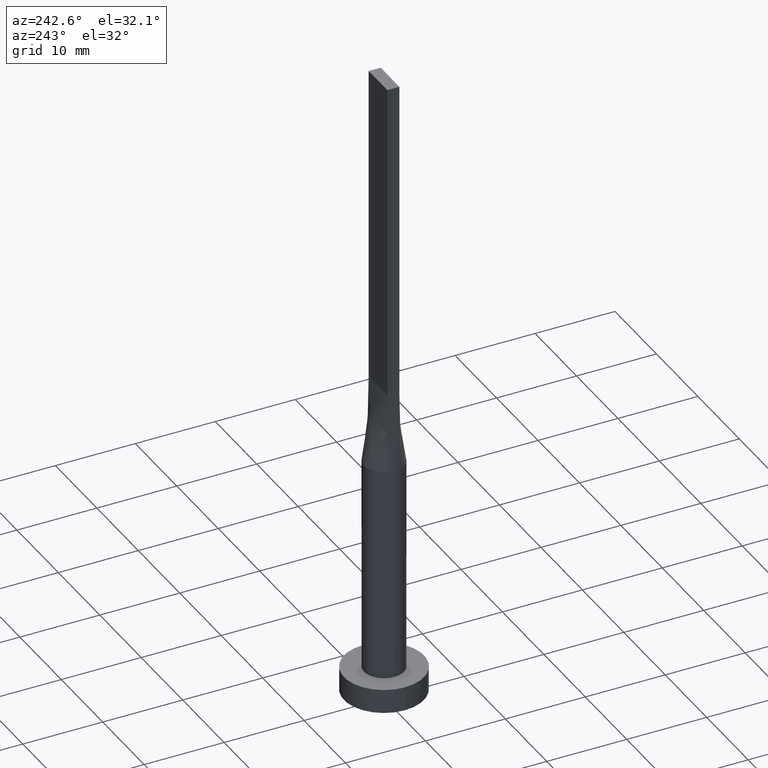
[diagram: clean part render]
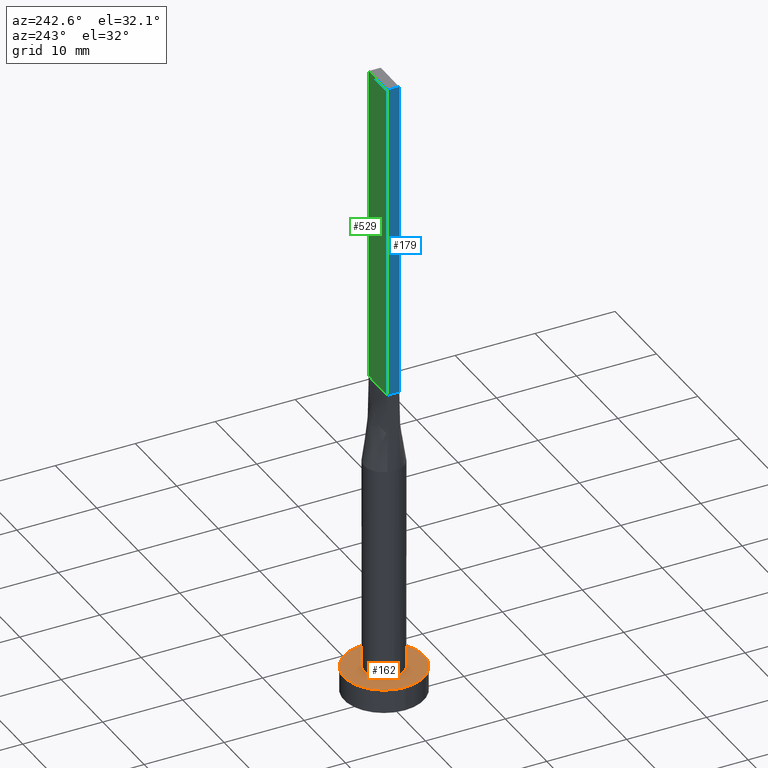
[diagram: same view with three faces highlighted in distinct colors, each labeled with its STEP entity id]
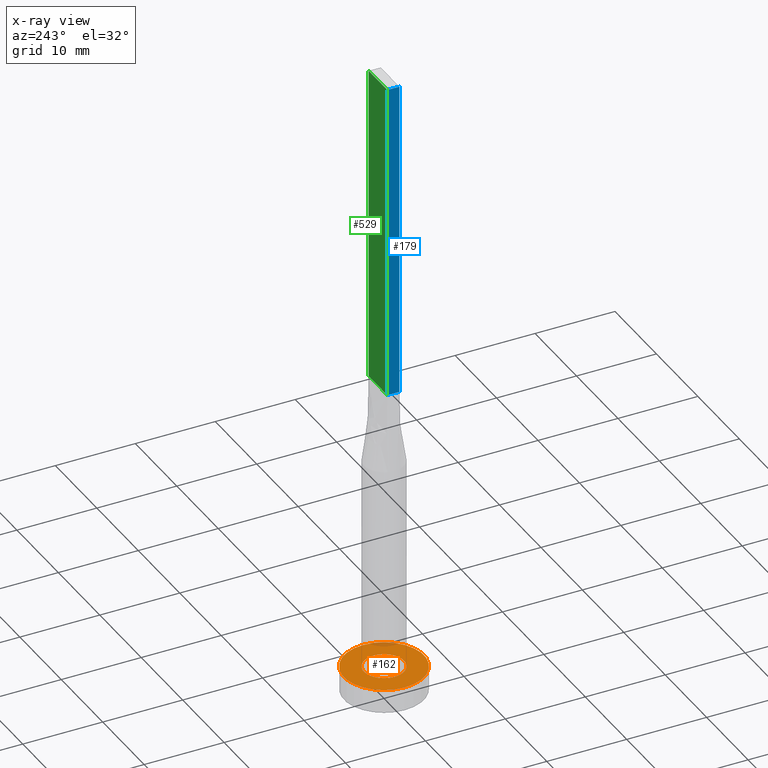
[diagram: x-ray of the same camera — body ghosted, the three highlighted faces saturated]
A machine part, auxiliary view with three faces highlighted in distinct colors.
The next image is the same camera in x-ray (body ghosted, the three faces saturated) — at least one of them is partly hidden behind the body in this view.
Their STEP definitions:

[orange] entity #162 — the highlighted planar face has unit normal (0, 0, 1).
#5 = CARTESIAN_POINT ( 'NONE',  ( 0.000000000000000000, 0.000000000000000000, 3.000000000000000000 ) ) ;
#6 = DIRECTION ( 'NONE',  ( 1.000000000000000000, 0.000000000000000000, -0.000000000000000000 ) ) ;
#26 = AXIS2_PLACEMENT_3D ( 'NONE', #175, #49, #135 ) ;
#28 = EDGE_LOOP ( 'NONE', ( #456, #459 ) ) ;
#32 = CIRCLE ( 'NONE', #76, 5.000000000000000000 ) ;
#33 = VERTEX_POINT ( 'NONE', #131 ) ;
#34 = CARTESIAN_POINT ( 'NONE',  ( -2.500000000000000000, 0.000000000000000000, 3.000000000000000000 ) ) ;
#49 = DIRECTION ( 'NONE',  ( 0.000000000000000000, 0.000000000000000000, 1.000000000000000000 ) ) ;
#52 = DIRECTION ( 'NONE',  ( 0.000000000000000000, 0.000000000000000000, 1.000000000000000000 ) ) ;
#66 = EDGE_LOOP ( 'NONE', ( #354, #411 ) ) ;
#75 = CARTESIAN_POINT ( 'NONE',  ( -5.000000000000000000, 0.000000000000000000, 3.000000000000000000 ) ) ;
#76 = AXIS2_PLACEMENT_3D ( 'NONE', #480, #559, #388 ) ;
#91 = EDGE_CURVE ( 'NONE', #230, #341, #113, .T. ) ;
#95 = FACE_OUTER_BOUND ( 'NONE', #66, .T. ) ;
#101 = FACE_BOUND ( 'NONE', #28, .T. ) ;
#113 = CIRCLE ( 'NONE', #448, 5.000000000000000000 ) ;
#131 = CARTESIAN_POINT ( 'NONE',  ( 2.500000000000000000, 3.061616997868383141E-16, 3.000000000000000000 ) ) ;
#134 = AXIS2_PLACEMENT_3D ( 'NONE', #461, #52, #217 ) ;
#135 = DIRECTION ( 'NONE',  ( 1.000000000000000000, 0.000000000000000000, 0.000000000000000000 ) ) ;
#142 = DIRECTION ( 'NONE',  ( 0.000000000000000000, 0.000000000000000000, 1.000000000000000000 ) ) ;
#162 = ADVANCED_FACE ( 'NONE', ( #101, #95 ), #269, .T. ) ;
#175 = CARTESIAN_POINT ( 'NONE',  ( 0.000000000000000000, 0.000000000000000000, 3.000000000000000000 ) ) ;
#188 = DIRECTION ( 'NONE',  ( 1.000000000000000000, 0.000000000000000000, 0.000000000000000000 ) ) ;
#217 = DIRECTION ( 'NONE',  ( 1.000000000000000000, 0.000000000000000000, 0.000000000000000000 ) ) ;
#220 = EDGE_CURVE ( 'NONE', #33, #438, #439, .T. ) ;
#230 = VERTEX_POINT ( 'NONE', #508 ) ;
#263 = EDGE_CURVE ( 'NONE', #438, #33, #289, .T. ) ;
#269 = PLANE ( 'NONE',  #427 ) ;
#289 = CIRCLE ( 'NONE', #134, 2.500000000000000000 ) ;
#307 = EDGE_CURVE ( 'NONE', #341, #230, #32, .T. ) ;
#320 = CARTESIAN_POINT ( 'NONE',  ( 0.000000000000000000, 0.000000000000000000, 3.000000000000000000 ) ) ;
#341 = VERTEX_POINT ( 'NONE', #75 ) ;
#354 = ORIENTED_EDGE ( 'NONE', *, *, #307, .T. ) ;
#388 = DIRECTION ( 'NONE',  ( 1.000000000000000000, 0.000000000000000000, 0.000000000000000000 ) ) ;
#411 = ORIENTED_EDGE ( 'NONE', *, *, #91, .T. ) ;
#427 = AXIS2_PLACEMENT_3D ( 'NONE', #320, #142, #6 ) ;
#438 = VERTEX_POINT ( 'NONE', #34 ) ;
#439 = CIRCLE ( 'NONE', #26, 2.500000000000000000 ) ;
#448 = AXIS2_PLACEMENT_3D ( 'NONE', #5, #506, #188 ) ;
#456 = ORIENTED_EDGE ( 'NONE', *, *, #263, .F. ) ;
#459 = ORIENTED_EDGE ( 'NONE', *, *, #220, .F. ) ;
#461 = CARTESIAN_POINT ( 'NONE',  ( 0.000000000000000000, 0.000000000000000000, 3.000000000000000000 ) ) ;
#480 = CARTESIAN_POINT ( 'NONE',  ( 0.000000000000000000, 0.000000000000000000, 3.000000000000000000 ) ) ;
#506 = DIRECTION ( 'NONE',  ( 0.000000000000000000, 0.000000000000000000, 1.000000000000000000 ) ) ;
#508 = CARTESIAN_POINT ( 'NONE',  ( 5.000000000000000000, 6.123233995736766282E-16, 3.000000000000000000 ) ) ;
#559 = DIRECTION ( 'NONE',  ( 0.000000000000000000, 0.000000000000000000, 1.000000000000000000 ) ) ;

[blue] entity #179 — the highlighted planar face has unit normal (1, -0, 0).
#2 = LINE ( 'NONE', #173, #305 ) ;
#9 = CARTESIAN_POINT ( 'NONE',  ( -2.249999999999999556, 0.7500000000000002220, 80.00000000000000000 ) ) ;
#29 = CARTESIAN_POINT ( 'NONE',  ( -2.250000000000000000, -0.7499999999999995559, 80.00000000000000000 ) ) ;
#37 = CARTESIAN_POINT ( 'NONE',  ( -2.250000000000000000, -0.7499999999999995559, 80.00000000000000000 ) ) ;
#58 = VECTOR ( 'NONE', #251, 1000.000000000000000 ) ;
#70 = AXIS2_PLACEMENT_3D ( 'NONE', #272, #105, #457 ) ;
#74 = ORIENTED_EDGE ( 'NONE', *, *, #423, .F. ) ;
#82 = EDGE_CURVE ( 'NONE', #165, #393, #84, .T. ) ;
#84 = LINE ( 'NONE', #295, #58 ) ;
#89 = LINE ( 'NONE', #100, #154 ) ;
#96 = CARTESIAN_POINT ( 'NONE',  ( -2.250000000000000000, -0.7499999999999995559, 40.00000000000000000 ) ) ;
#100 = CARTESIAN_POINT ( 'NONE',  ( -2.249999999999999556, 0.7500000000000002220, 40.00000000000000000 ) ) ;
#105 = DIRECTION ( 'NONE',  ( 1.000000000000000000, -2.891205793294678819E-16, 0.000000000000000000 ) ) ;
#132 = DIRECTION ( 'NONE',  ( -0.000000000000000000, -0.000000000000000000, -1.000000000000000000 ) ) ;
#143 = VERTEX_POINT ( 'NONE', #313 ) ;
#154 = VECTOR ( 'NONE', #409, 1000.000000000000000 ) ;
#165 = VERTEX_POINT ( 'NONE', #9 ) ;
#173 = CARTESIAN_POINT ( 'NONE',  ( -2.249999999999999556, 0.7500000000000002220, 80.00000000000000000 ) ) ;
#179 = ADVANCED_FACE ( 'NONE', ( #470 ), #267, .F. ) ;
#212 = EDGE_LOOP ( 'NONE', ( #441, #74, #431, #576 ) ) ;
#251 = DIRECTION ( 'NONE',  ( -2.891205793294678819E-16, -1.000000000000000000, 0.000000000000000000 ) ) ;
#253 = DIRECTION ( 'NONE',  ( -0.000000000000000000, -0.000000000000000000, -1.000000000000000000 ) ) ;
#267 = PLANE ( 'NONE',  #70 ) ;
#272 = CARTESIAN_POINT ( 'NONE',  ( -2.249999999999999556, 0.7500000000000002220, 80.00000000000000000 ) ) ;
#295 = CARTESIAN_POINT ( 'NONE',  ( -2.249999999999999556, 0.7500000000000002220, 80.00000000000000000 ) ) ;
#305 = VECTOR ( 'NONE', #132, 1000.000000000000000 ) ;
#313 = CARTESIAN_POINT ( 'NONE',  ( -2.249999999999999556, 0.7500000000000002220, 40.00000000000000000 ) ) ;
#393 = VERTEX_POINT ( 'NONE', #37 ) ;
#409 = DIRECTION ( 'NONE',  ( -2.891205793294678819E-16, -1.000000000000000000, 0.000000000000000000 ) ) ;
#423 = EDGE_CURVE ( 'NONE', #393, #567, #443, .T. ) ;
#431 = ORIENTED_EDGE ( 'NONE', *, *, #82, .F. ) ;
#440 = VECTOR ( 'NONE', #253, 1000.000000000000000 ) ;
#441 = ORIENTED_EDGE ( 'NONE', *, *, #485, .T. ) ;
#443 = LINE ( 'NONE', #29, #440 ) ;
#457 = DIRECTION ( 'NONE',  ( 2.891205793294678819E-16, 1.000000000000000000, 0.000000000000000000 ) ) ;
#470 = FACE_OUTER_BOUND ( 'NONE', #212, .T. ) ;
#485 = EDGE_CURVE ( 'NONE', #143, #567, #89, .T. ) ;
#502 = EDGE_CURVE ( 'NONE', #165, #143, #2, .T. ) ;
#567 = VERTEX_POINT ( 'NONE', #96 ) ;
#576 = ORIENTED_EDGE ( 'NONE', *, *, #502, .T. ) ;

[green] entity #529 — the highlighted planar face has unit normal (0, -1, 0).
#2 = LINE ( 'NONE', #173, #305 ) ;
#9 = CARTESIAN_POINT ( 'NONE',  ( -2.249999999999999556, 0.7500000000000002220, 80.00000000000000000 ) ) ;
#10 = PLANE ( 'NONE',  #266 ) ;
#45 = LINE ( 'NONE', #352, #542 ) ;
#54 = ORIENTED_EDGE ( 'NONE', *, *, #502, .F. ) ;
#57 = CARTESIAN_POINT ( 'NONE',  ( 2.249999999999999556, 0.7500000000000002220, 80.00000000000000000 ) ) ;
#63 = EDGE_CURVE ( 'NONE', #205, #204, #534, .T. ) ;
#102 = EDGE_LOOP ( 'NONE', ( #348, #54, #373, #148 ) ) ;
#132 = DIRECTION ( 'NONE',  ( -0.000000000000000000, -0.000000000000000000, -1.000000000000000000 ) ) ;
#143 = VERTEX_POINT ( 'NONE', #313 ) ;
#144 = CARTESIAN_POINT ( 'NONE',  ( 2.249999999999999556, 0.7500000000000002220, 80.00000000000000000 ) ) ;
#148 = ORIENTED_EDGE ( 'NONE', *, *, #63, .T. ) ;
#165 = VERTEX_POINT ( 'NONE', #9 ) ;
#173 = CARTESIAN_POINT ( 'NONE',  ( -2.249999999999999556, 0.7500000000000002220, 80.00000000000000000 ) ) ;
#204 = VERTEX_POINT ( 'NONE', #421 ) ;
#205 = VERTEX_POINT ( 'NONE', #216 ) ;
#211 = DIRECTION ( 'NONE',  ( -1.000000000000000000, -0.000000000000000000, -0.000000000000000000 ) ) ;
#216 = CARTESIAN_POINT ( 'NONE',  ( 2.249999999999999556, 0.7500000000000002220, 80.00000000000000000 ) ) ;
#241 = EDGE_CURVE ( 'NONE', #205, #165, #371, .T. ) ;
#266 = AXIS2_PLACEMENT_3D ( 'NONE', #144, #511, #377 ) ;
#279 = FACE_OUTER_BOUND ( 'NONE', #102, .T. ) ;
#305 = VECTOR ( 'NONE', #132, 1000.000000000000000 ) ;
#313 = CARTESIAN_POINT ( 'NONE',  ( -2.249999999999999556, 0.7500000000000002220, 40.00000000000000000 ) ) ;
#316 = DIRECTION ( 'NONE',  ( -1.000000000000000000, 0.000000000000000000, 0.000000000000000000 ) ) ;
#348 = ORIENTED_EDGE ( 'NONE', *, *, #381, .T. ) ;
#352 = CARTESIAN_POINT ( 'NONE',  ( -2.249999999999999556, 0.7500000000000002220, 40.00000000000000000 ) ) ;
#353 = DIRECTION ( 'NONE',  ( -0.000000000000000000, -0.000000000000000000, -1.000000000000000000 ) ) ;
#358 = VECTOR ( 'NONE', #316, 1000.000000000000000 ) ;
#365 = VECTOR ( 'NONE', #353, 1000.000000000000000 ) ;
#371 = LINE ( 'NONE', #57, #358 ) ;
#373 = ORIENTED_EDGE ( 'NONE', *, *, #241, .F. ) ;
#377 = DIRECTION ( 'NONE',  ( 0.000000000000000000, -0.000000000000000000, -1.000000000000000000 ) ) ;
#381 = EDGE_CURVE ( 'NONE', #204, #143, #45, .T. ) ;
#421 = CARTESIAN_POINT ( 'NONE',  ( 2.249999999999999556, 0.7500000000000002220, 40.00000000000000000 ) ) ;
#502 = EDGE_CURVE ( 'NONE', #165, #143, #2, .T. ) ;
#511 = DIRECTION ( 'NONE',  ( 0.000000000000000000, -1.000000000000000000, 0.000000000000000000 ) ) ;
#529 = ADVANCED_FACE ( 'NONE', ( #279 ), #10, .F. ) ;
#534 = LINE ( 'NONE', #578, #365 ) ;
#542 = VECTOR ( 'NONE', #211, 1000.000000000000000 ) ;
#578 = CARTESIAN_POINT ( 'NONE',  ( 2.249999999999999556, 0.7500000000000002220, 80.00000000000000000 ) ) ;